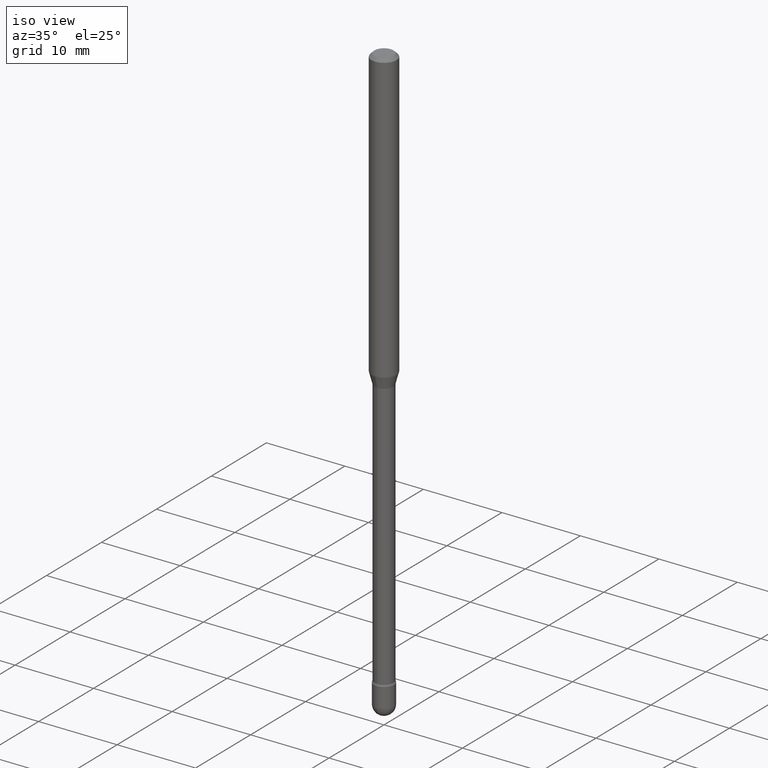
[diagram: clean part render]
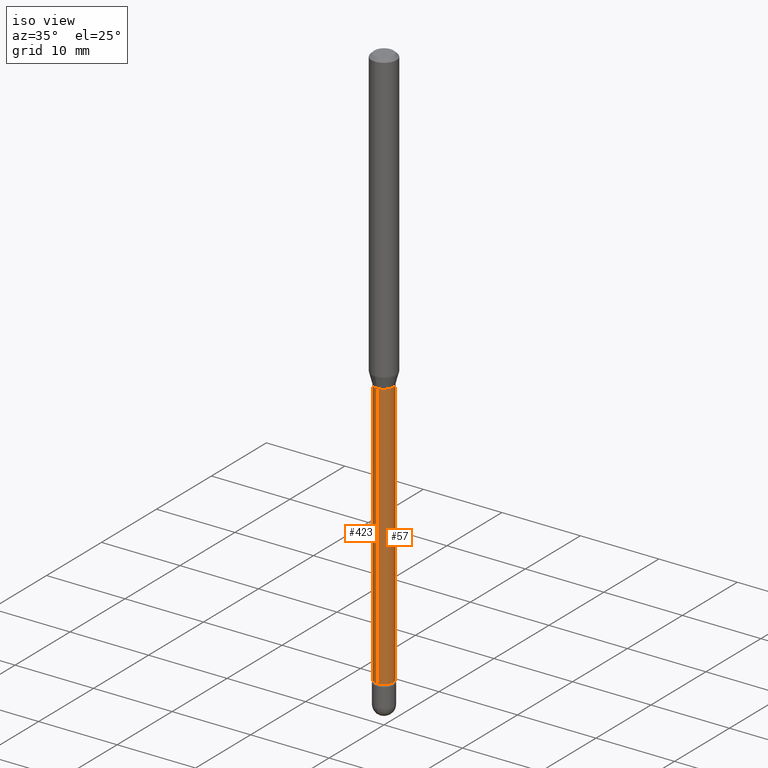
[diagram: same view with one multi-face feature highlighted, each face labeled with its STEP entity id]
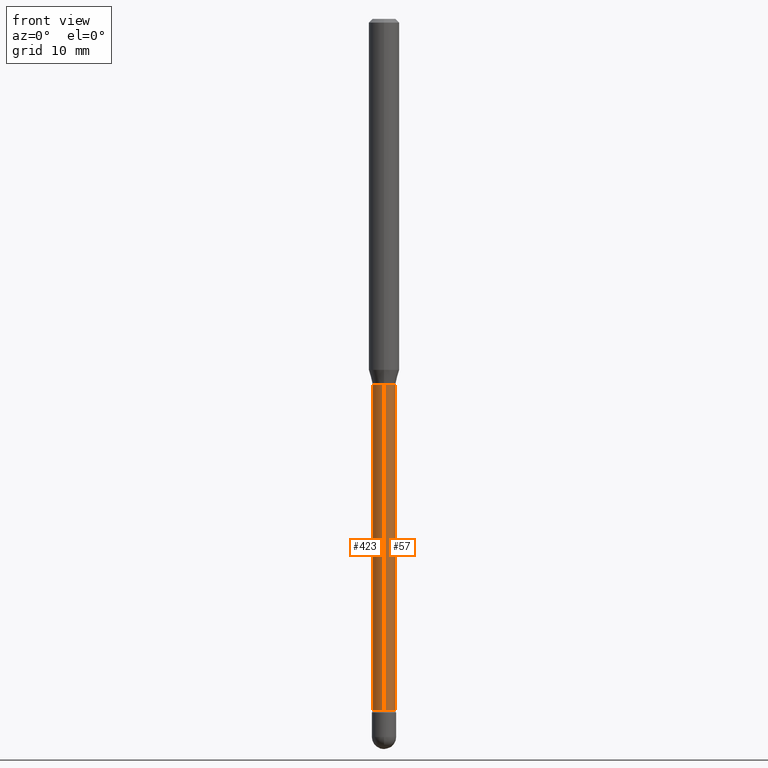
[diagram: same view with one multi-face feature highlighted, each face labeled with its STEP entity id]
A machine part, iso view. The highlighted faces form ONE feature: a constant-radius fillet chain: 2 tangent blend faces with common blend radius 1.1938 mm. The faces share edges in the B-rep.
A second angle (front view) of the same feature is appended — it is thin or edge-on in the first view.
Their STEP definitions:
[1] entity #423 (Cylinder):
#9 = CIRCLE ( 'NONE', #470, 0.04700000000000000705 ) ;
#16 = DIRECTION ( 'NONE',  ( -2.445421076024140334E-29, 3.491549691150324233E-15, 1.000000000000000000 ) ) ;
#45 = EDGE_CURVE ( 'NONE', #282, #251, #543, .T. ) ;
#52 = VECTOR ( 'NONE', #412, 39.37007874015748143 ) ;
#59 = CARTESIAN_POINT ( 'NONE',  ( -3.281992458512177725E-16, -0.04700000000000524591, -1.501974787463810967 ) ) ;
#61 = CARTESIAN_POINT ( 'NONE',  ( -1.169113584055446105E-44, 1.669184350826100908E-30, 4.780733988912460139E-16 ) ) ;
#79 = EDGE_CURVE ( 'NONE', #555, #277, #232, .T. ) ;
#87 = AXIS2_PLACEMENT_3D ( 'NONE', #115, #450, #454 ) ;
#91 = DIRECTION ( 'NONE',  ( -2.445421076024140334E-29, 3.491549691150324233E-15, 1.000000000000000000 ) ) ;
#105 = DIRECTION ( 'NONE',  ( -6.982962677686265133E-15, -1.000000000000000000, 3.491549691150322655E-15 ) ) ;
#106 = CARTESIAN_POINT ( 'NONE',  ( 3.339550858073170996E-16, 0.04699999999999476125, -1.501974787463811412 ) ) ;
#114 = ORIENTED_EDGE ( 'NONE', *, *, #45, .T. ) ;
#115 = CARTESIAN_POINT ( 'NONE',  ( 6.947441276984582983E-29, -9.919492672558074066E-15, -2.841000000000000636 ) ) ;
#147 = ORIENTED_EDGE ( 'NONE', *, *, #245, .T. ) ;
#202 = AXIS2_PLACEMENT_3D ( 'NONE', #61, #16, #105 ) ;
#206 = CARTESIAN_POINT ( 'NONE',  ( -3.281992458511861195E-16, -0.04700000000001007538, -2.841000000000000636 ) ) ;
#220 = CARTESIAN_POINT ( 'NONE',  ( 3.446132268437187104E-16, 0.04699999999999023709, -2.841000000000000636 ) ) ;
#228 = DIRECTION ( 'NONE',  ( -2.445421076024140334E-29, 3.491549691150324233E-15, 1.000000000000000000 ) ) ;
#232 = LINE ( 'NONE', #392, #386 ) ;
#243 = CARTESIAN_POINT ( 'NONE',  ( -3.281992458512550462E-16, -0.04700000000000008338, 6.421762343753115033E-16 ) ) ;
#245 = EDGE_CURVE ( 'NONE', #555, #282, #334, .T. ) ;
#251 = VERTEX_POINT ( 'NONE', #59 ) ;
#257 = ORIENTED_EDGE ( 'NONE', *, *, #79, .F. ) ;
#277 = VERTEX_POINT ( 'NONE', #106 ) ;
#282 = VERTEX_POINT ( 'NONE', #206 ) ;
#285 = CYLINDRICAL_SURFACE ( 'NONE', #202, 0.04700000000000008338 ) ;
#334 = CIRCLE ( 'NONE', #87, 0.04700000000000015971 ) ;
#386 = VECTOR ( 'NONE', #228, 39.37007874015748143 ) ;
#392 = CARTESIAN_POINT ( 'NONE',  ( 3.339550858072475812E-16, 0.04700000000000008338, 3.139705634071805245E-16 ) ) ;
#400 = ORIENTED_EDGE ( 'NONE', *, *, #403, .F. ) ;
#403 = EDGE_CURVE ( 'NONE', #277, #251, #9, .T. ) ;
#412 = DIRECTION ( 'NONE',  ( -2.445421076024140334E-29, 3.491549691150324233E-15, 1.000000000000000000 ) ) ;
#423 = ADVANCED_FACE ( 'NONE', ( #440 ), #285, .T. ) ;
#440 = FACE_OUTER_BOUND ( 'NONE', #485, .T. ) ;
#449 = DIRECTION ( 'NONE',  ( -6.982962677686265922E-15, -1.000000000000000000, 5.812442539711197800E-15 ) ) ;
#450 = DIRECTION ( 'NONE',  ( -2.445421076024140334E-29, 3.491549691150324233E-15, 1.000000000000000000 ) ) ;
#454 = DIRECTION ( 'NONE',  ( -6.982962677686265133E-15, -1.000000000000000000, 0.000000000000000000 ) ) ;
#470 = AXIS2_PLACEMENT_3D ( 'NONE', #536, #91, #449 ) ;
#485 = EDGE_LOOP ( 'NONE', ( #257, #147, #114, #400 ) ) ;
#536 = CARTESIAN_POINT ( 'NONE',  ( 3.672960800920882505E-29, -5.244219605284844182E-15, -1.501974787463811190 ) ) ;
#543 = LINE ( 'NONE', #243, #52 ) ;
#555 = VERTEX_POINT ( 'NONE', #220 ) ;
[2] entity #57 (Cylinder):
#1 = EDGE_CURVE ( 'NONE', #282, #555, #247, .T. ) ;
#22 = FACE_OUTER_BOUND ( 'NONE', #337, .T. ) ;
#23 = AXIS2_PLACEMENT_3D ( 'NONE', #165, #73, #342 ) ;
#45 = EDGE_CURVE ( 'NONE', #282, #251, #543, .T. ) ;
#52 = VECTOR ( 'NONE', #412, 39.37007874015748143 ) ;
#57 = ADVANCED_FACE ( 'NONE', ( #22 ), #498, .T. ) ;
#59 = CARTESIAN_POINT ( 'NONE',  ( -3.281992458512177725E-16, -0.04700000000000524591, -1.501974787463810967 ) ) ;
#63 = CARTESIAN_POINT ( 'NONE',  ( -1.169113584055446105E-44, 1.669184350826100908E-30, 4.780733988912460139E-16 ) ) ;
#73 = DIRECTION ( 'NONE',  ( -2.445421076024140334E-29, 3.491549691150324233E-15, 1.000000000000000000 ) ) ;
#79 = EDGE_CURVE ( 'NONE', #555, #277, #232, .T. ) ;
#106 = CARTESIAN_POINT ( 'NONE',  ( 3.339550858073170996E-16, 0.04699999999999476125, -1.501974787463811412 ) ) ;
#157 = DIRECTION ( 'NONE',  ( -6.982962677686265133E-15, -1.000000000000000000, 0.000000000000000000 ) ) ;
#165 = CARTESIAN_POINT ( 'NONE',  ( 3.672960800920882505E-29, -5.244219605284844182E-15, -1.501974787463811190 ) ) ;
#206 = CARTESIAN_POINT ( 'NONE',  ( -3.281992458511861195E-16, -0.04700000000001007538, -2.841000000000000636 ) ) ;
#210 = AXIS2_PLACEMENT_3D ( 'NONE', #63, #455, #250 ) ;
#220 = CARTESIAN_POINT ( 'NONE',  ( 3.446132268437187104E-16, 0.04699999999999023709, -2.841000000000000636 ) ) ;
#228 = DIRECTION ( 'NONE',  ( -2.445421076024140334E-29, 3.491549691150324233E-15, 1.000000000000000000 ) ) ;
#232 = LINE ( 'NONE', #392, #386 ) ;
#243 = CARTESIAN_POINT ( 'NONE',  ( -3.281992458512550462E-16, -0.04700000000000008338, 6.421762343753115033E-16 ) ) ;
#247 = CIRCLE ( 'NONE', #296, 0.04700000000000015971 ) ;
#250 = DIRECTION ( 'NONE',  ( -6.982962677686265133E-15, -1.000000000000000000, 3.491549691150322655E-15 ) ) ;
#251 = VERTEX_POINT ( 'NONE', #59 ) ;
#277 = VERTEX_POINT ( 'NONE', #106 ) ;
#282 = VERTEX_POINT ( 'NONE', #206 ) ;
#294 = CARTESIAN_POINT ( 'NONE',  ( 6.947441276984582983E-29, -9.919492672558074066E-15, -2.841000000000000636 ) ) ;
#295 = ORIENTED_EDGE ( 'NONE', *, *, #45, .F. ) ;
#296 = AXIS2_PLACEMENT_3D ( 'NONE', #294, #331, #157 ) ;
#323 = ORIENTED_EDGE ( 'NONE', *, *, #1, .T. ) ;
#331 = DIRECTION ( 'NONE',  ( -2.445421076024140334E-29, 3.491549691150324233E-15, 1.000000000000000000 ) ) ;
#337 = EDGE_LOOP ( 'NONE', ( #323, #530, #541, #295 ) ) ;
#342 = DIRECTION ( 'NONE',  ( -6.982962677686265922E-15, -1.000000000000000000, 5.812442539711197800E-15 ) ) ;
#375 = EDGE_CURVE ( 'NONE', #251, #277, #563, .T. ) ;
#386 = VECTOR ( 'NONE', #228, 39.37007874015748143 ) ;
#392 = CARTESIAN_POINT ( 'NONE',  ( 3.339550858072475812E-16, 0.04700000000000008338, 3.139705634071805245E-16 ) ) ;
#412 = DIRECTION ( 'NONE',  ( -2.445421076024140334E-29, 3.491549691150324233E-15, 1.000000000000000000 ) ) ;
#455 = DIRECTION ( 'NONE',  ( -2.445421076024140334E-29, 3.491549691150324233E-15, 1.000000000000000000 ) ) ;
#498 = CYLINDRICAL_SURFACE ( 'NONE', #210, 0.04700000000000008338 ) ;
#530 = ORIENTED_EDGE ( 'NONE', *, *, #79, .T. ) ;
#541 = ORIENTED_EDGE ( 'NONE', *, *, #375, .F. ) ;
#543 = LINE ( 'NONE', #243, #52 ) ;
#555 = VERTEX_POINT ( 'NONE', #220 ) ;
#563 = CIRCLE ( 'NONE', #23, 0.04700000000000000705 ) ;